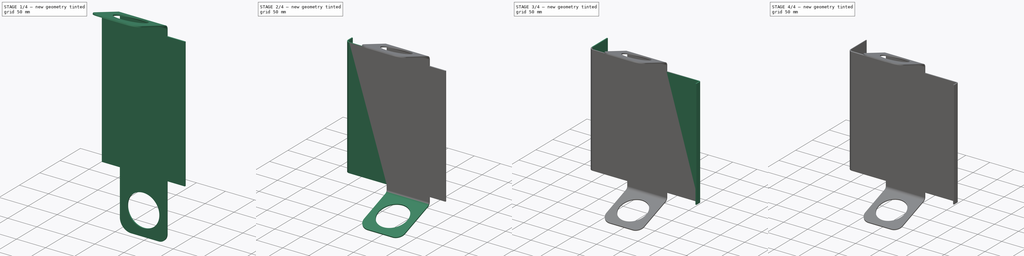
[diagram: build sequence overview — one tinted view per stage of 4, left to right]
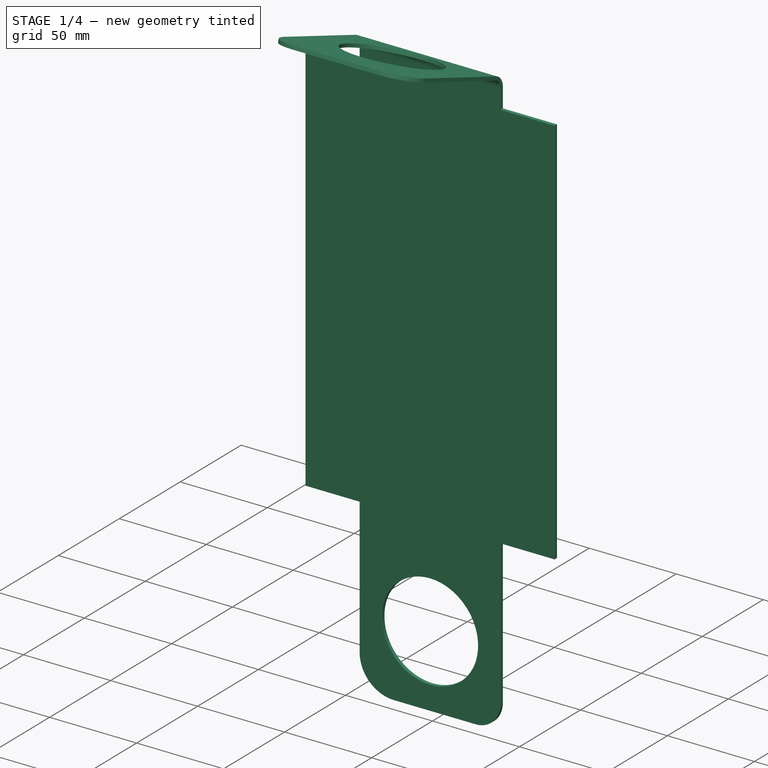
[diagram: stage 1 of 4 — iso view after this stage's code; geometry added in this stage tinted green]
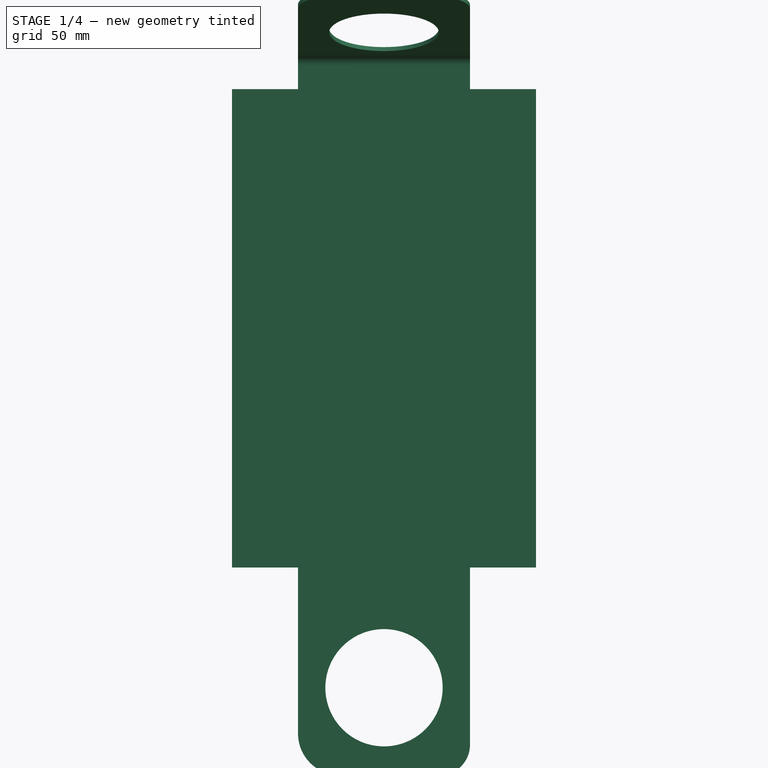
[diagram: stage 1 of 4 — front view after this stage's code; geometry added in this stage tinted green]
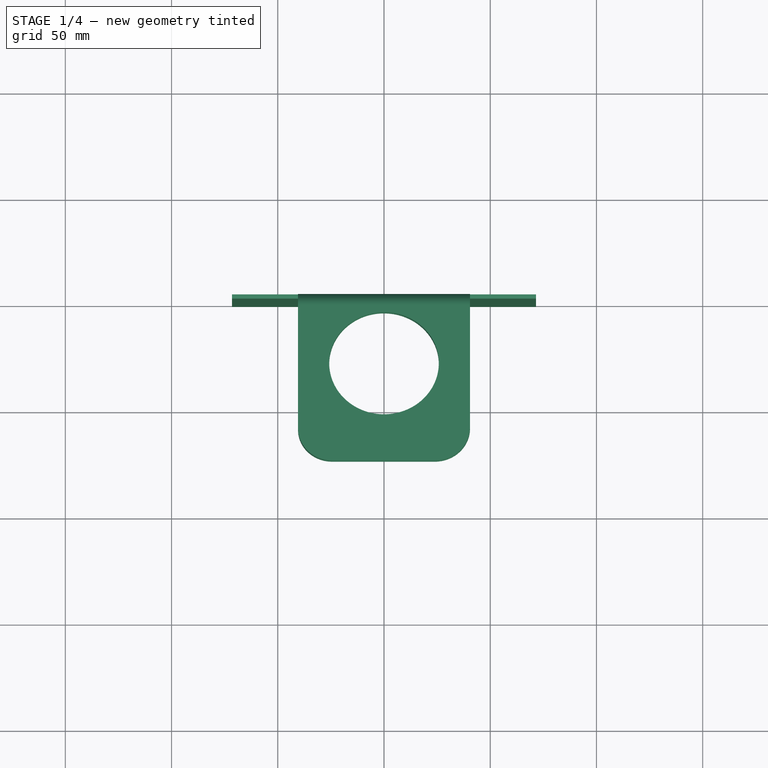
[diagram: stage 1 of 4 — top view after this stage's code; geometry added in this stage tinted green]
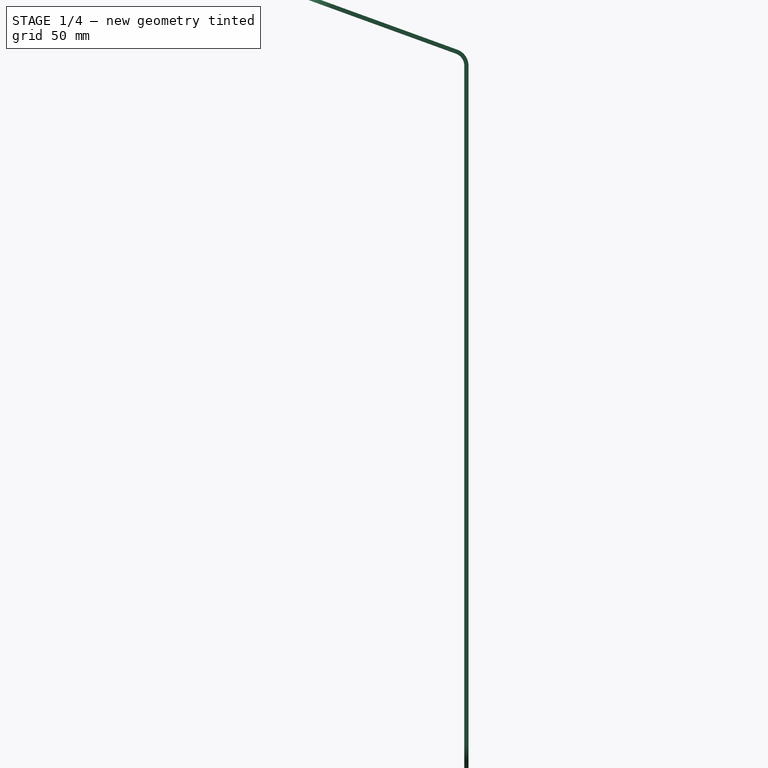
[diagram: stage 1 of 4 — right view after this stage's code; geometry added in this stage tinted green]
FCSTD DOCUMENT  (FreeCAD 0.21R33771 (Git))
Label: sheetMetal1
License: All rights reserved
LicenseURL: http://en.wikipedia.org/wiki/All_rights_reserved
objects: PartDesign::FeaturePython×7, Sketcher::SketchObject×4, PartDesign::Pad×2, Part::Feature×1, PartDesign::Fillet×1, PartDesign::Body×1
note: 19 computed .brp shape members not serialized (recipe doc carries the construction recipe); baked Part::Feature solids carry a one-line shape summary decoded from their .brp

FEATURE [Sketcher::SketchObject] Sketch
  FullyConstrained = false
  MapMode = 5
  Placement = pos=(0,0,0) rot=(1,0,0;1.5708rad)
  Support = -> [XZ_Plane]
  sketch-geometry (20):
    g0: LineSegment StartX=-71.5687 StartY=-112.588 StartZ=0 EndX=-71.5687 EndY=112.588 EndZ=0
    g1: LineSegment StartX=-71.5687 StartY=112.588 StartZ=0 EndX=-40.47 EndY=112.588 EndZ=0
    g2: LineSegment StartX=71.5687 StartY=112.588 StartZ=0 EndX=71.5687 EndY=-112.588 EndZ=0
    g3: LineSegment StartX=71.5687 StartY=-112.588 StartZ=0 EndX=40.47 EndY=-112.588 EndZ=0
    g4: GeomPoint X=0 Y=0 Z=0
    g5: LineSegment StartX=-40.47 StartY=194.38 StartZ=0 EndX=-40.47 EndY=112.588 EndZ=0
    g6: LineSegment StartX=-20.8463 StartY=-210.361 StartZ=0 EndX=26.1739 EndY=-210.361 EndZ=0
    g7: LineSegment StartX=40.47 StartY=-196.065 StartZ=0 EndX=40.47 EndY=-112.588 EndZ=0
    g8: LineSegment StartX=23.9304 StartY=210.361 StartZ=0 EndX=-24.4884 EndY=210.361 EndZ=0
    g9: GeomPoint X=0 Y=0 Z=0
    g10: LineSegment StartX=-40.47 StartY=-112.588 StartZ=0 EndX=-40.47 EndY=-190.737 EndZ=0
    g11: LineSegment StartX=40.47 StartY=112.588 StartZ=0 EndX=71.5687 EndY=112.588 EndZ=0
    g12: LineSegment StartX=40.47 StartY=112.588 StartZ=0 EndX=40.47 EndY=193.822 EndZ=0
    g13: LineSegment StartX=-40.47 StartY=-112.588 StartZ=0 EndX=-71.5687 EndY=-112.588 EndZ=0
    g14: ArcOfCircle CenterX=-24.4884 CenterY=194.38 CenterZ=0 NormalX=0 NormalY=0 NormalZ=1 AngleXU=0 Radius=15.9816 StartAngle=1.5708 EndAngle=3.14159
    g15: ArcOfCircle CenterX=23.9304 CenterY=193.822 CenterZ=0 NormalX=0 NormalY=0 NormalZ=1 AngleXU=0 Radius=16.5396 StartAngle=0 EndAngle=1.5708
    g16: ArcOfCircle CenterX=-20.8463 CenterY=-190.737 CenterZ=0 NormalX=0 NormalY=0 NormalZ=1 AngleXU=0 Radius=19.6237 StartAngle=3.14159 EndAngle=4.71239
    g17: ArcOfCircle CenterX=26.1739 CenterY=-196.065 CenterZ=0 NormalX=0 NormalY=0 NormalZ=1 AngleXU=0 Radius=14.296 StartAngle=4.71239 EndAngle=6.28319
    g18: Circle CenterX=0 CenterY=161.405 CenterZ=0 NormalX=0 NormalY=0 NormalZ=1 AngleXU=0 Radius=25.8002
    g19: Circle CenterX=0 CenterY=-169.181 CenterZ=0 NormalX=0 NormalY=0 NormalZ=1 AngleXU=0 Radius=27.601
  constraints (29):
    c: Coincident(g0,g1)
    c: Coincident(g11,g2)
    c: Coincident(g2,g3)
    c: Coincident(g13,g0)
    c: Horizontal(g1)
    c: Horizontal(g3)
    c: Vertical(g0)
    c: Vertical(g2)
    c: Symmetric(g11,g0,g4)
    c: Coincident(g4,g-1)
    c: Horizontal(g6)
    c: Horizontal(g8)
    c: Vertical(g5)
    c: Vertical(g7)
    c: Coincident(g9,g4)
    c: Coincident(g1,g5)
    c: Coincident(g12,g11)
    c: Coincident(g3,g7)
    c: Coincident(g13,g10)
    c: Tangent(g8,g14) = -1.5708
    c: Tangent(g5,g14) = -1.5708
    c: Tangent(g8,g15) = -1.5708
    c: Tangent(g12,g15) = -1.5708
    c: Tangent(g10,g16) = -1.5708
    c: Tangent(g6,g16) = -1.5708
    c: Tangent(g6,g17) = -1.5708
    c: Tangent(g7,g17) = -1.5708
    c: PointOnObject(g18,g-2)
    c: PointOnObject(g19,g-2)
FEATURE [PartDesign::Pad] Pad
  Direction = (0,-1,2e-16)
  Length = 2
  Length2 = 10
  Placement = pos=(0,0,0) rot=(1,0,0;1.5708rad)
  Profile = -> Sketch
  ReferenceAxis = -> Sketch [N_Axis]
  Refine = true
  Type = 0
FEATURE [Sketcher::SketchObject] Sketch001
  FullyConstrained = false
  MapMode = 5
  Placement = pos=(0,-2,9e-16) rot=(1,0,0;1.5708rad)
  Support = -> [Pad]
  sketch-geometry (1):
    g0: LineSegment StartX=-50.8091 StartY=127.838 StartZ=0 EndX=49.1737 EndY=127.838 EndZ=0
  constraints (1):
    c: Horizontal(g0)
FEATURE [PartDesign::FeaturePython] Fold  # WARN: FeaturePython — macro-defined, semantics opaque (R4)
  BaseFeature = -> Pad
  BendLine = -> Sketch001
  Position = 0
  angle = 70
  baseObject = -> Pad [Face20]
  invert = false
  invertbend = false
  kfactor = 0.5
  radius = 6
  unfold = false
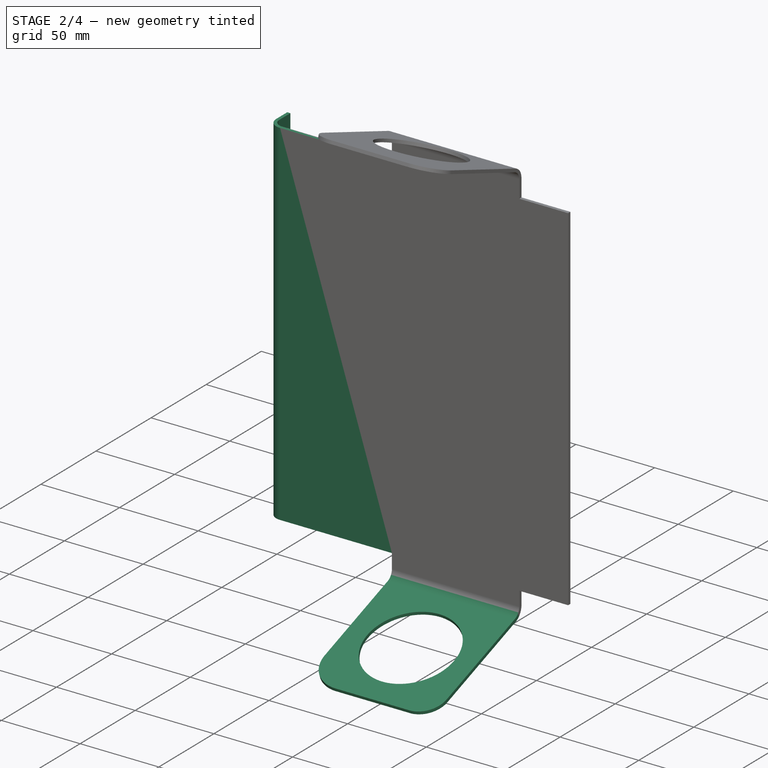
[diagram: stage 2 of 4 — iso view after this stage's code; geometry added in this stage tinted green]
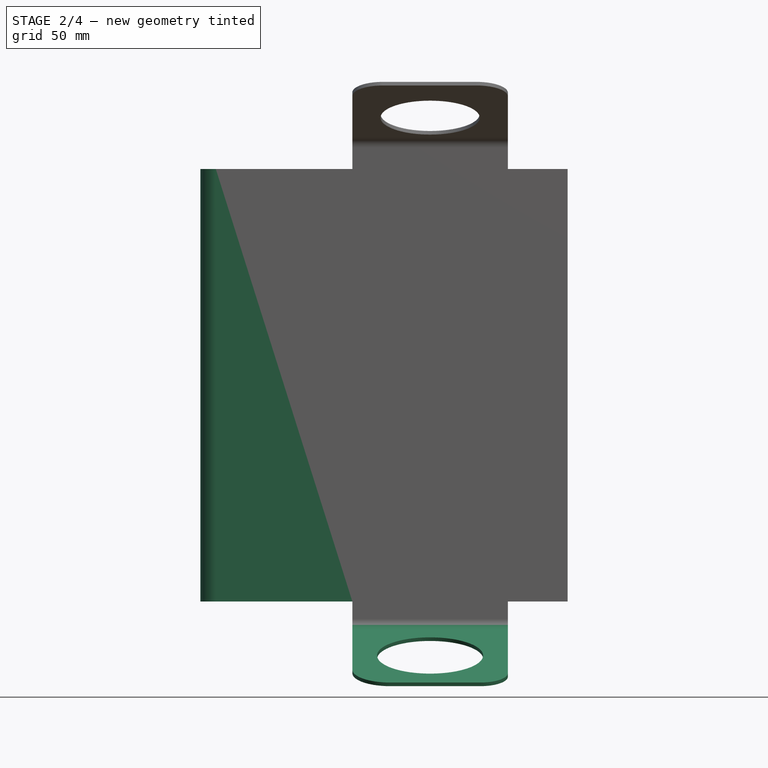
[diagram: stage 2 of 4 — front view after this stage's code; geometry added in this stage tinted green]
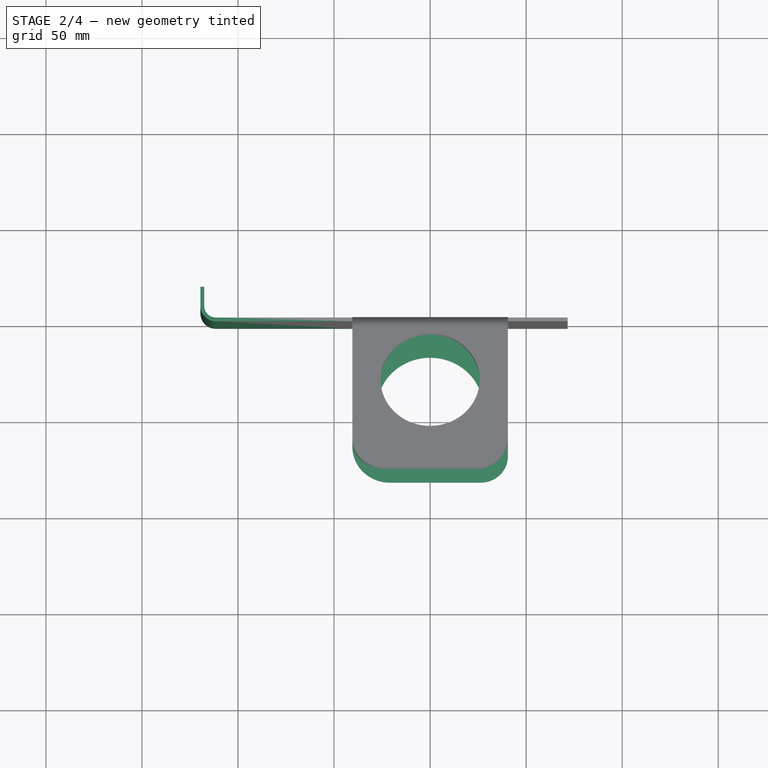
[diagram: stage 2 of 4 — top view after this stage's code; geometry added in this stage tinted green]
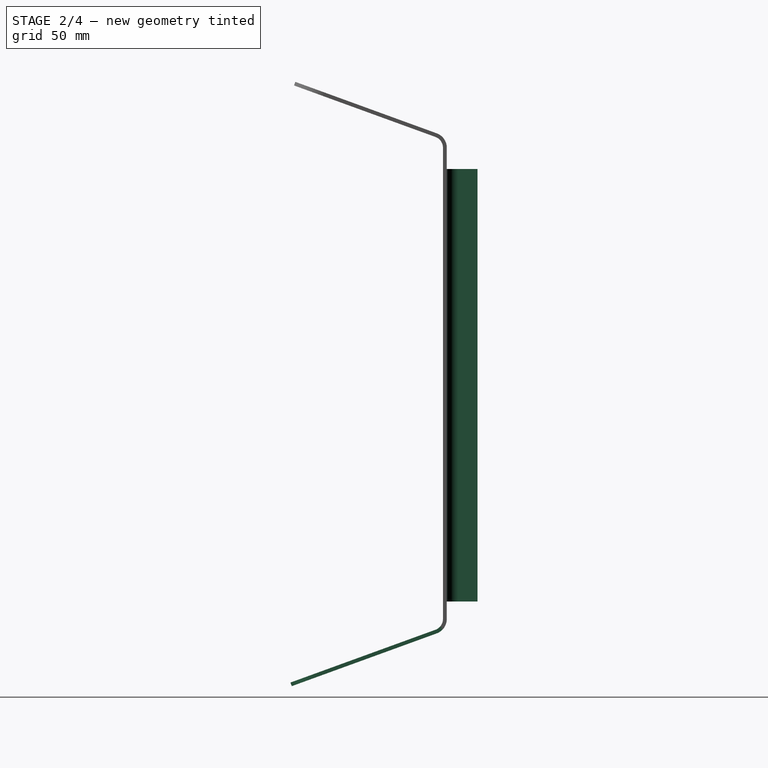
[diagram: stage 2 of 4 — right view after this stage's code; geometry added in this stage tinted green]
FEATURE [Sketcher::SketchObject] Sketch002
  FullyConstrained = false
  MapMode = 5
  Placement = pos=(0,-2,4e-16) rot=(1,0,0;1.5708rad)
  Support = -> [Fold]
  sketch-geometry (1):
    g0: LineSegment StartX=-49.3706 StartY=-125.867 StartZ=0 EndX=63.5356 EndY=-125.867 EndZ=0
  constraints (1):
    c: Horizontal(g0)
FEATURE [PartDesign::FeaturePython] Fold001  # WARN: FeaturePython — macro-defined, semantics opaque (R4)
  BaseFeature = -> Fold
  BendLine = -> Sketch002
  Position = 0
  angle = 70
  baseObject = -> Fold [Face5]
  invert = false
  invertbend = false
  kfactor = 0.5
  radius = 6
  unfold = false
FEATURE [PartDesign::FeaturePython] Extend  # WARN: FeaturePython — macro-defined, semantics opaque (R4)
  BaseFeature = -> Fold001
  Offset = 0.02
  Refine = true
  UseSubtraction = false
  baseObject = -> Fold001 [Face15]
  gap1 = 0
  gap2 = 0
  length = 40
FEATURE [PartDesign::FeaturePython] Bend  # WARN: FeaturePython — macro-defined, semantics opaque (R4)
  AutoMiter = true
  BaseFeature = -> Extend
  BendType = 0
  LengthList = [10]
  LengthSpec = 0
  ReliefFactor = 0.7
  UseReliefFactor = false
  angle = -90
  baseObject = -> Extend [Face33]
  bendAList = [-90]
  extend1 = 0
  extend2 = 0
  gap1 = 0
  gap2 = 0
  invert = false
  kfactor = 0.5
  length = 10
  maxExtendDist = 5
  minGap = 0.2
  minReliefGap = 1
  miterangle1 = 0
  miterangle2 = 0
  offset = 0
  radius = 6
  reliefType = 0
  reliefd = 1
  reliefw = 0.8
  sketchflip = false
  sketchinvert = false
  unfold = false
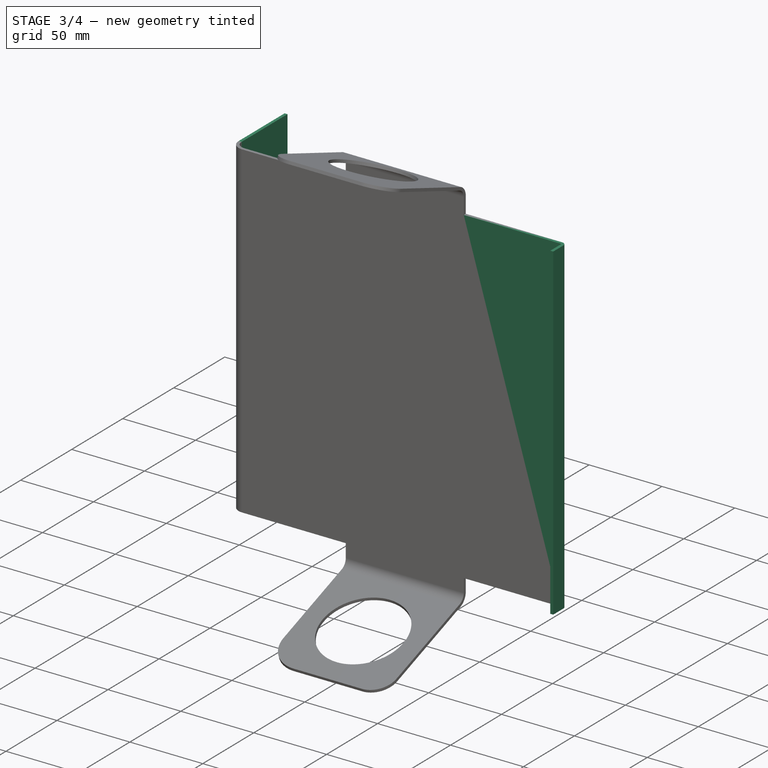
[diagram: stage 3 of 4 — iso view after this stage's code; geometry added in this stage tinted green]
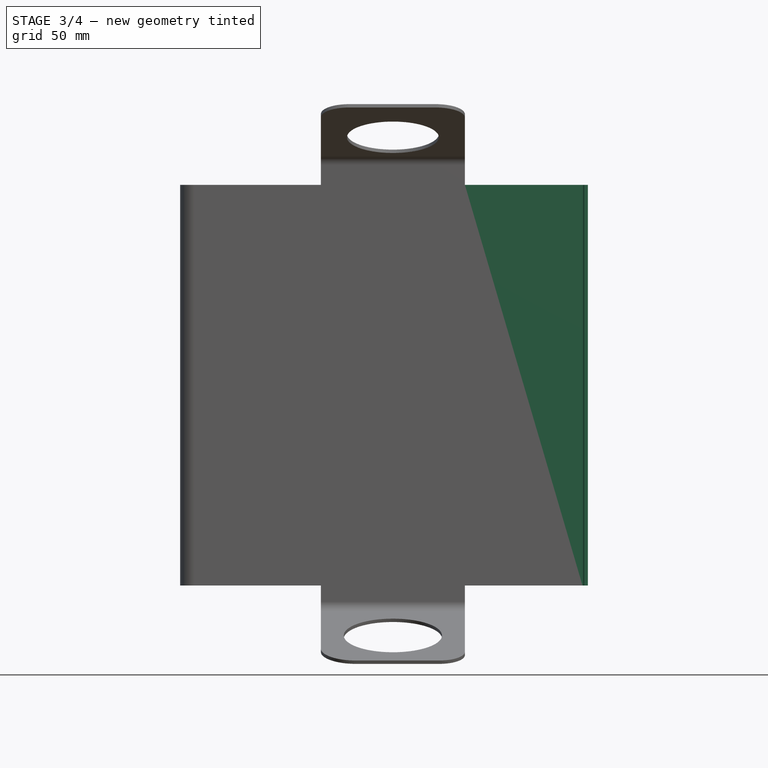
[diagram: stage 3 of 4 — front view after this stage's code; geometry added in this stage tinted green]
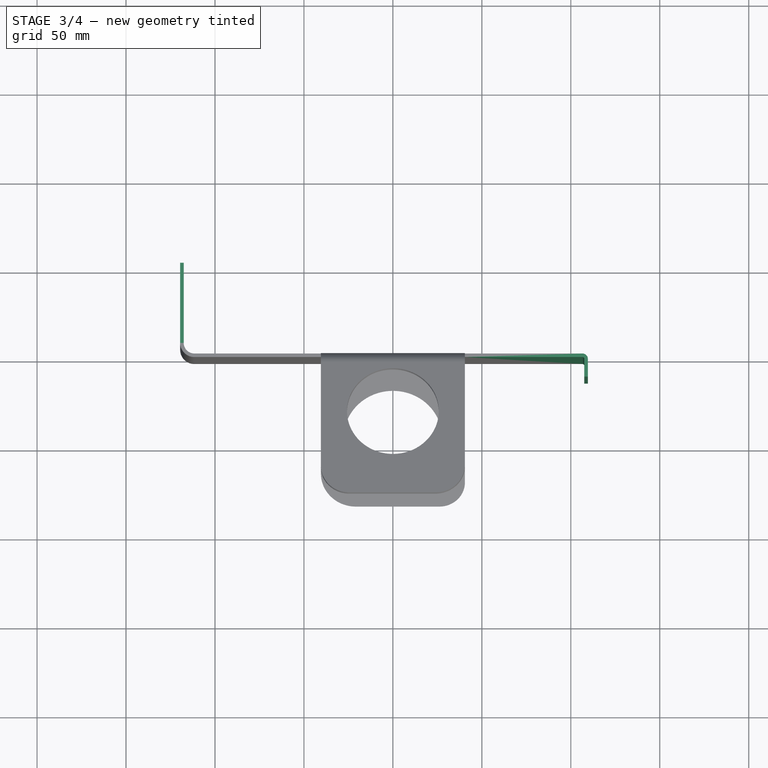
[diagram: stage 3 of 4 — top view after this stage's code; geometry added in this stage tinted green]
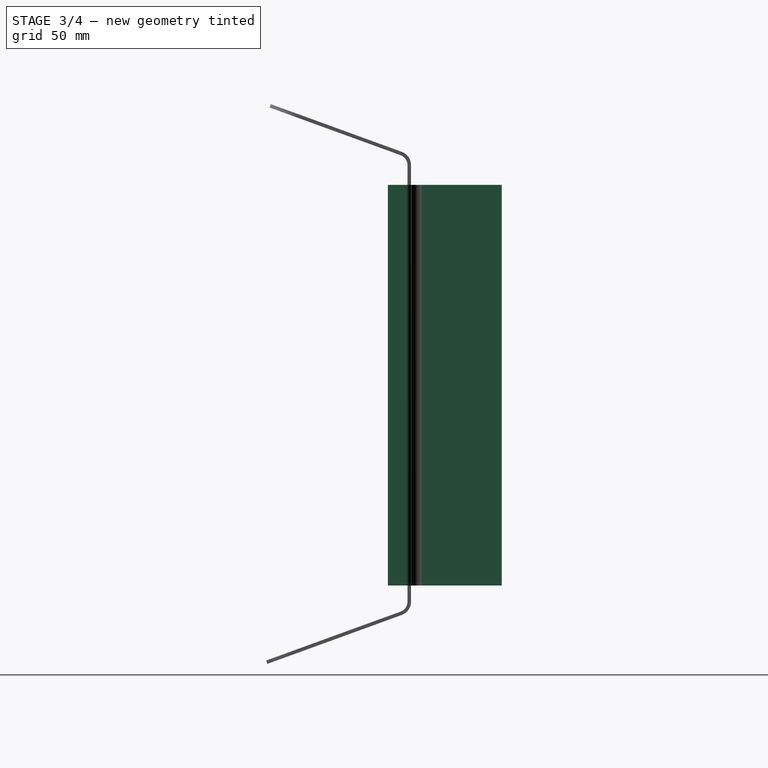
[diagram: stage 3 of 4 — right view after this stage's code; geometry added in this stage tinted green]
FEATURE [PartDesign::FeaturePython] Extend001  # WARN: FeaturePython — macro-defined, semantics opaque (R4)
  BaseFeature = -> Bend
  Offset = 0.02
  Refine = true
  UseSubtraction = false
  baseObject = -> Bend [Face3]
  gap1 = 0
  gap2 = 0
  length = 35
FEATURE [PartDesign::FeaturePython] Extend002  # WARN: FeaturePython — macro-defined, semantics opaque (R4)
  BaseFeature = -> Extend001
  Offset = 0.02
  Refine = true
  UseSubtraction = false
  baseObject = -> Extend001 [Face10]
  gap1 = 0
  gap2 = 0
  length = 35
FEATURE [PartDesign::FeaturePython] Bend001  # WARN: FeaturePython — macro-defined, semantics opaque (R4)
  AutoMiter = true
  BaseFeature = -> Extend002
  BendType = 0
  LengthList = [10]
  LengthSpec = 0
  ReliefFactor = 0.7
  UseReliefFactor = false
  angle = 90
  baseObject = -> Extend002 [Face22]
  bendAList = [90]
  extend1 = 0
  extend2 = 0
  gap1 = 0
  gap2 = 0
  invert = false
  kfactor = 0.5
  length = 10
  maxExtendDist = 5
  minGap = 0.2
  minReliefGap = 1
  miterangle1 = 0
  miterangle2 = 0
  offset = 0
  radius = 1
  reliefType = 0
  reliefd = 1
  reliefw = 0.8
  sketchflip = false
  sketchinvert = false
  unfold = false
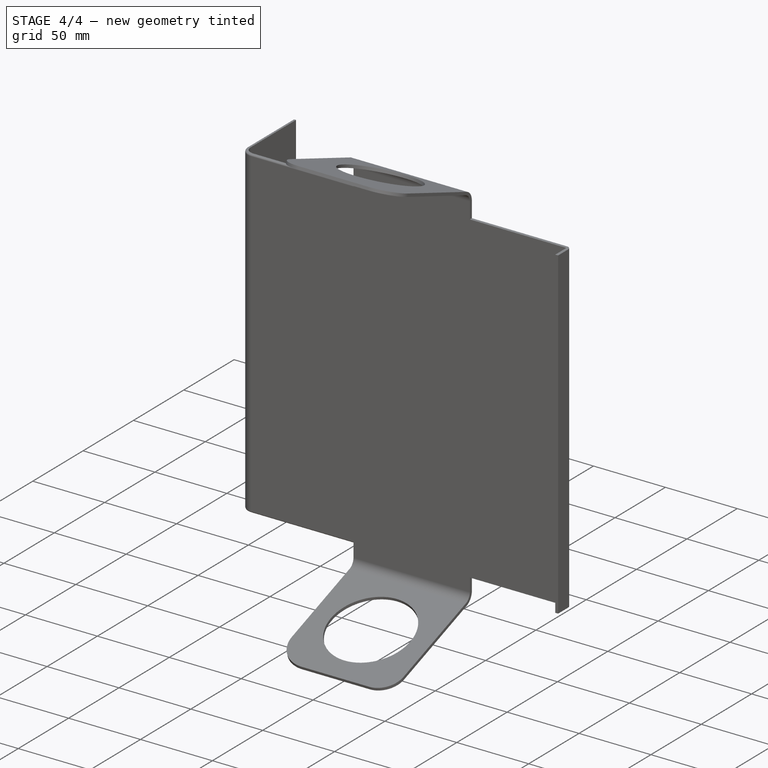
[diagram: stage 4 of 4 — iso view after this stage's code; geometry added in this stage tinted green]
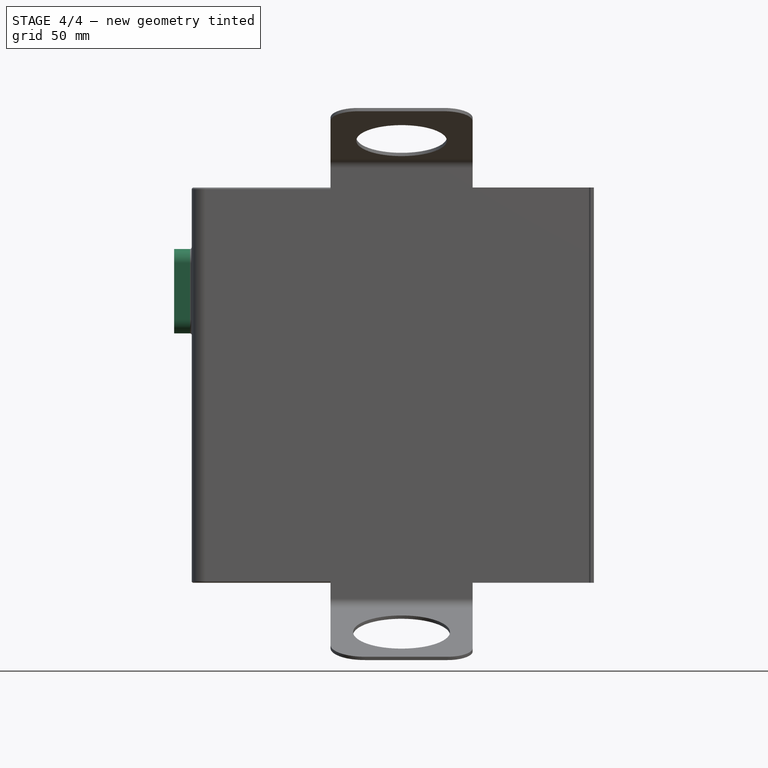
[diagram: stage 4 of 4 — front view after this stage's code; geometry added in this stage tinted green]
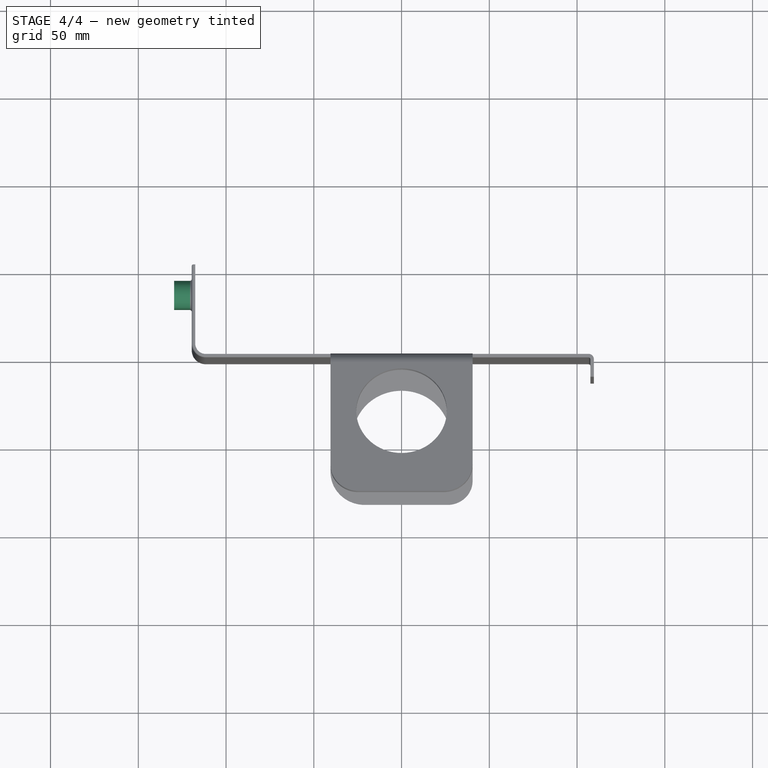
[diagram: stage 4 of 4 — top view after this stage's code; geometry added in this stage tinted green]
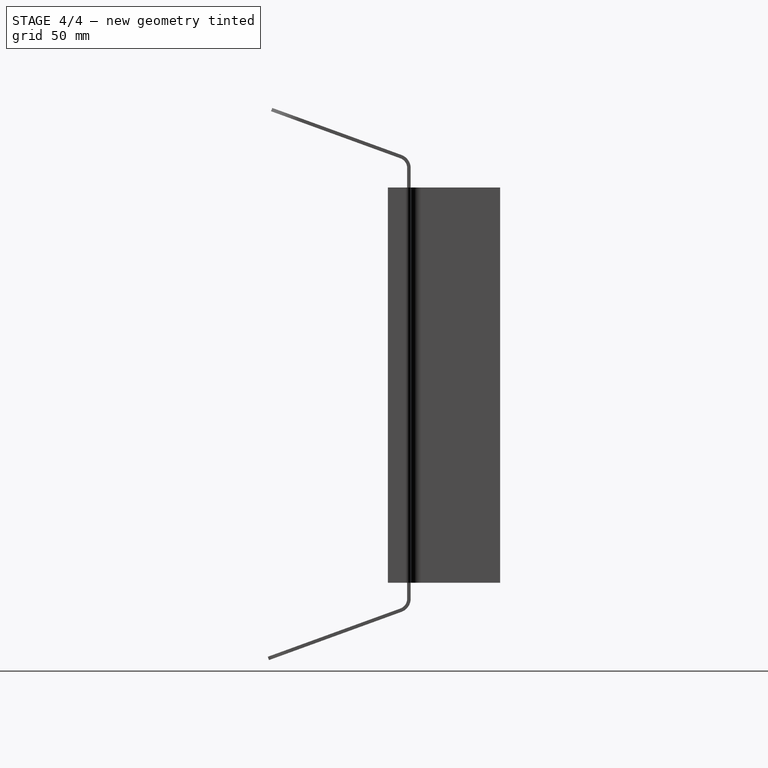
[diagram: stage 4 of 4 — right view after this stage's code; geometry added in this stage tinted green]
FEATURE [Sketcher::SketchObject] Sketch003
  FullyConstrained = false
  MapMode = 5
  Placement = pos=(-119.569,0,0) rot=(0.57735,-0.57735,-0.57735;2.0944rad)
  Support = -> [Bend001]
  sketch-geometry (4):
    g0: ArcOfCircle CenterX=-34.3388 CenterY=69.5161 CenterZ=0 NormalX=0 NormalY=0 NormalZ=1 AngleXU=0 Radius=8.04635 StartAngle=2.4596e-12 EndAngle=3.14159
    g1: ArcOfCircle CenterX=-34.3388 CenterY=37.5594 CenterZ=0 NormalX=0 NormalY=0 NormalZ=1 AngleXU=0 Radius=8.04635 StartAngle=3.14159 EndAngle=6.28319
    g2: LineSegment StartX=-42.3851 StartY=69.5161 StartZ=0 EndX=-42.3851 EndY=37.5594 EndZ=0
    g3: LineSegment StartX=-26.2924 StartY=37.5594 StartZ=0 EndX=-26.2924 EndY=69.5161 EndZ=0
  constraints (6):
    c: Tangent(g0,g2) = -1.5708
    c: Tangent(g2,g1) = -1.5708
    c: Tangent(g1,g3) = -1.5708
    c: Tangent(g3,g0) = -1.5708
    c: Equal(g0,g1)
    c: Vertical(g2)
FEATURE [Part::Feature] Unfold
  shape: bbox 286.6 x 2 x 420.5 mm, 20 faces (baked)
FEATURE [PartDesign::Pad] Pad001
  BaseFeature = -> Bend001
  Direction = (-1,0,0)
  Length = 10
  Length2 = 10
  Profile = -> Sketch003
  ReferenceAxis = -> Sketch003 [N_Axis]
  Refine = true
  Type = 0
FEATURE [PartDesign::Fillet] Fillet
  Base = -> Pad001 [Face22]
  BaseFeature = -> Pad001
  Radius = 1
  Refine = true
  SupportTransform = false
  UseAllEdges = false
FEATURE [PartDesign::Body] Body
  Group = -> [Sketch,Pad,Sketch001,Fold,Fold001,Extend,Bend,Extend001,Extend002,Bend001,Sketch003,Pad001,Fillet]
  Origin = -> Origin
  Tip = -> Fillet
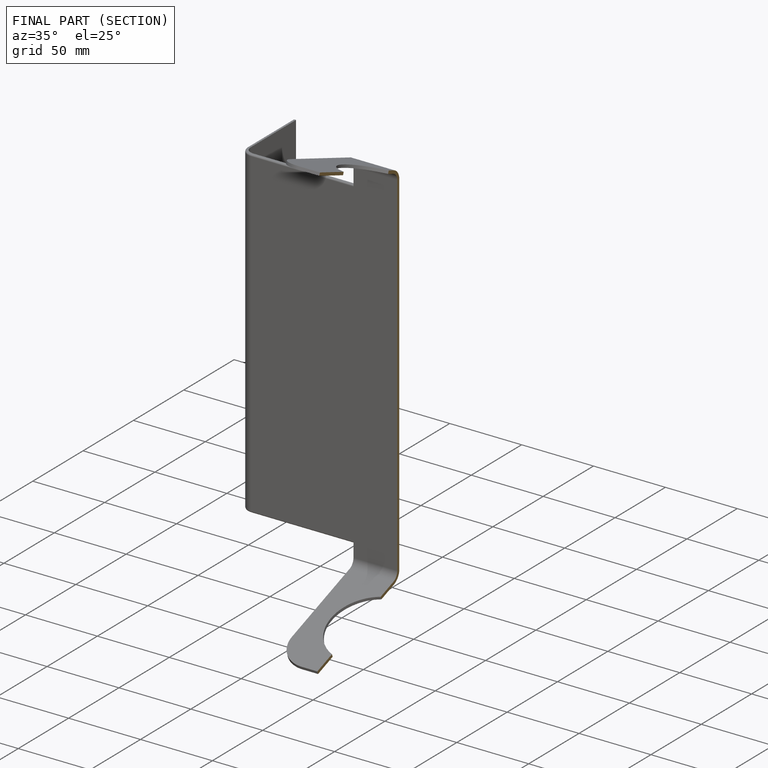
[diagram: finished part — half-section view (interior)]
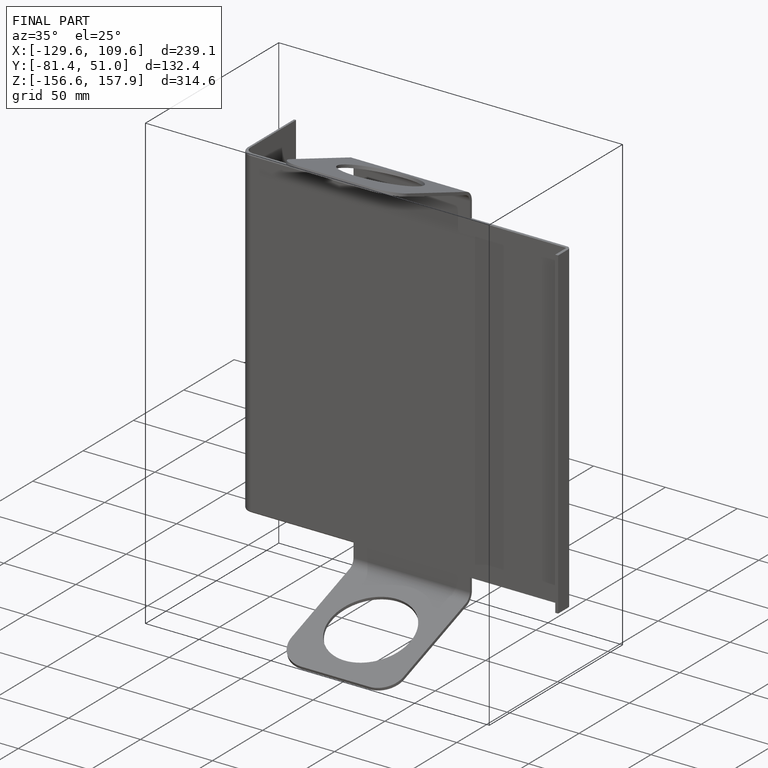
[diagram: finished part — iso view with bounding-box wireframe]
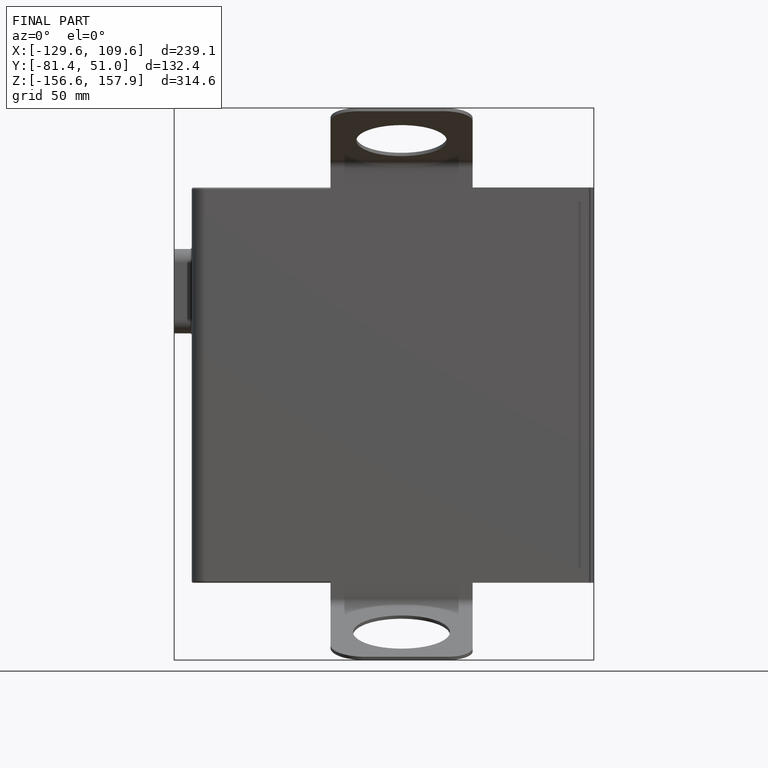
[diagram: finished part — front view with bounding-box wireframe]
